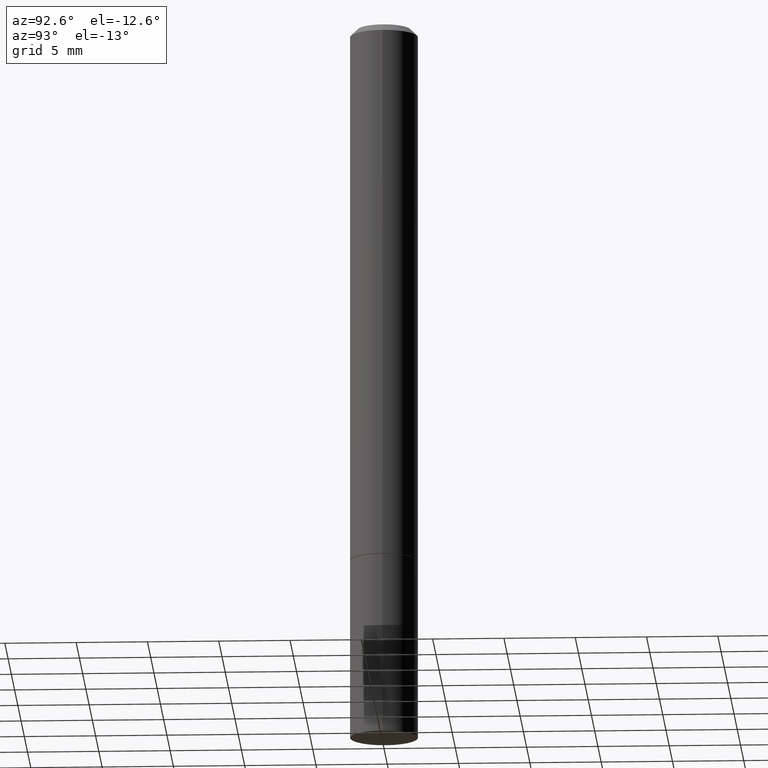
[diagram: clean part render]
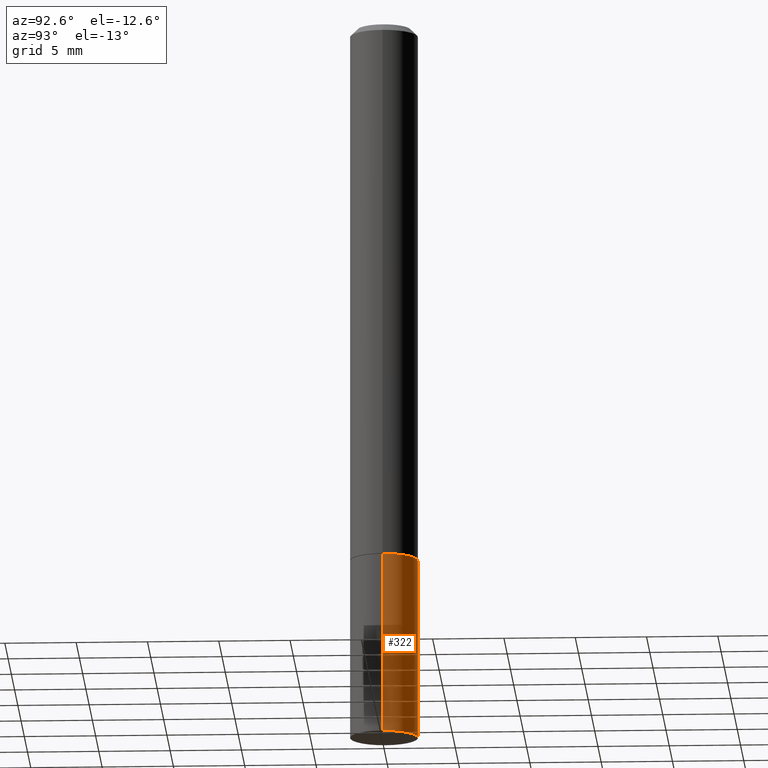
[diagram: same view with one face highlighted and labeled with its STEP entity id]
A machine part, auxiliary view. The second image highlights one B-rep face of the part: STEP entity #322.
In plain terms, the highlighted cylindrical surface (edge-blend (fillet) strip) has radius 2.3813 mm, axis along (-0, 0, 1).
Its self-contained STEP definition (entity closure, byte-faithful):
#1 = AXIS2_PLACEMENT_3D ( 'NONE', #320, #59, #167 ) ;
#45 = CARTESIAN_POINT ( 'NONE',  ( -0.09375000000000001388, -5.443958528200409958E-15, -2.000000000000000000 ) ) ;
#59 = DIRECTION ( 'NONE',  ( -2.445468806185136597E-29, 3.491481338843145583E-15, 1.000000000000000000 ) ) ;
#61 = CIRCLE ( 'NONE', #222, 0.09375000000000001388 ) ;
#64 = EDGE_CURVE ( 'NONE', #115, #249, #70, .T. ) ;
#70 = LINE ( 'NONE', #358, #206 ) ;
#77 = VECTOR ( 'NONE', #78, 39.37007874015748143 ) ;
#78 = DIRECTION ( 'NONE',  ( -2.445468806185136877E-29, 3.491481338843145188E-15, 1.000000000000000000 ) ) ;
#82 = EDGE_CURVE ( 'NONE', #194, #115, #353, .T. ) ;
#87 = CARTESIAN_POINT ( 'NONE',  ( 0.09375000000000001388, -7.637615428719378669E-15, -2.000000000000000000 ) ) ;
#88 = FACE_OUTER_BOUND ( 'NONE', #293, .T. ) ;
#103 = AXIS2_PLACEMENT_3D ( 'NONE', #107, #150, #309 ) ;
#107 = CARTESIAN_POINT ( 'NONE',  ( 4.890937612370273194E-29, -6.982962677686291165E-15, -2.000000000000000000 ) ) ;
#111 = CARTESIAN_POINT ( 'NONE',  ( 0.09375000000000001388, -5.891874759297804892E-15, -1.499999999999999778 ) ) ;
#115 = VERTEX_POINT ( 'NONE', #45 ) ;
#148 = ORIENTED_EDGE ( 'NONE', *, *, #171, .F. ) ;
#150 = DIRECTION ( 'NONE',  ( -2.445468806185136597E-29, 3.491481338843145583E-15, 1.000000000000000000 ) ) ;
#157 = CARTESIAN_POINT ( 'NONE',  ( -0.09375000000000001388, -5.443958528200409958E-15, -1.499999999999999778 ) ) ;
#161 = CARTESIAN_POINT ( 'NONE',  ( 3.668203209277704335E-29, -5.237222008264717388E-15, -1.499999999999999778 ) ) ;
#167 = DIRECTION ( 'NONE',  ( 1.000000000000000000, -6.982962677686265922E-15, 4.876176775795935793E-29 ) ) ;
#171 = EDGE_CURVE ( 'NONE', #236, #249, #61, .T. ) ;
#173 = ORIENTED_EDGE ( 'NONE', *, *, #82, .T. ) ;
#181 = CARTESIAN_POINT ( 'NONE',  ( 0.09375000000000001388, -6.546527510330875041E-16, 4.571415727308690506E-30 ) ) ;
#192 = CYLINDRICAL_SURFACE ( 'NONE', #1, 0.09375000000000001388 ) ;
#194 = VERTEX_POINT ( 'NONE', #87 ) ;
#206 = VECTOR ( 'NONE', #364, 39.37007874015748143 ) ;
#222 = AXIS2_PLACEMENT_3D ( 'NONE', #161, #286, #342 ) ;
#236 = VERTEX_POINT ( 'NONE', #111 ) ;
#242 = LINE ( 'NONE', #181, #77 ) ;
#249 = VERTEX_POINT ( 'NONE', #157 ) ;
#286 = DIRECTION ( 'NONE',  ( -2.445468806185136597E-29, 3.491481338843145583E-15, 1.000000000000000000 ) ) ;
#293 = EDGE_LOOP ( 'NONE', ( #173, #356, #148, #304 ) ) ;
#304 = ORIENTED_EDGE ( 'NONE', *, *, #316, .F. ) ;
#309 = DIRECTION ( 'NONE',  ( 1.000000000000000000, -6.982962677686261189E-15, 0.000000000000000000 ) ) ;
#316 = EDGE_CURVE ( 'NONE', #194, #236, #242, .T. ) ;
#320 = CARTESIAN_POINT ( 'NONE',  ( 0.000000000000000000, 0.000000000000000000, 0.000000000000000000 ) ) ;
#322 = ADVANCED_FACE ( 'NONE', ( #88 ), #192, .T. ) ;
#342 = DIRECTION ( 'NONE',  ( 1.000000000000000000, -6.982962677686261189E-15, 0.000000000000000000 ) ) ;
#353 = CIRCLE ( 'NONE', #103, 0.09375000000000001388 ) ;
#356 = ORIENTED_EDGE ( 'NONE', *, *, #64, .T. ) ;
#358 = CARTESIAN_POINT ( 'NONE',  ( -0.09375000000000001388, 6.661338147750940229E-16, -4.611501647113973995E-30 ) ) ;
#364 = DIRECTION ( 'NONE',  ( -2.445468806185136877E-29, 3.491481338843145188E-15, 1.000000000000000000 ) ) ;